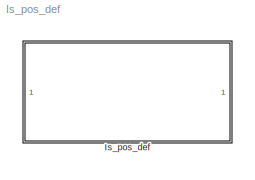
MODEL Is_pos_def
KIND model
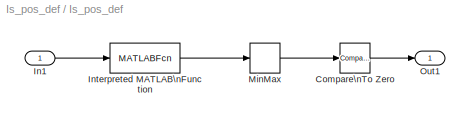
BLOCK [SubSystem] Is_pos_def
  FunctionWithSeparateData = off
  MaskHideContents = off
  MinAlgLoopOccurrences = off
  Opaque = off
  Ports = [1, 1]
  PropExecContextOutsideSubsystem = off
  RTWSystemCode = Auto
  RequestExecContextInheritance = off
  SID = 9
  TreatAsAtomicUnit = on
BLOCK [Reference] Is_pos_def/Compare\nTo Zero  REF=simulink/Logic and Bit\nOperations/Compare\nTo Zero
  OutDataTypeStr = boolean
  Ports = [1, 1]
  SID = 5
  SourceBlock = simulink/Logic and Bit\nOperations/Compare\nTo Zero
  SourceType = Compare To Zero
  ZeroCross = on
  relop = >=
BLOCK [Inport] Is_pos_def/In1
  IconDisplay = Port number
  SID = 10
BLOCK [MATLABFcn] Is_pos_def/Interpreted MATLAB\nFunction
  MATLABFcn = eig
  Ports = [1, 1]
  SID = 6
BLOCK [MinMax] Is_pos_def/MinMax
  InputSameDT = off
  Ports = [1, 1]
  SID = 7
  SaturateOnIntegerOverflow = off
BLOCK [Outport] Is_pos_def/Out1
  IconDisplay = Port number
  SID = 13
LINE Is_pos_def/Compare\nTo Zero:1 -> Is_pos_def/Out1:1
LINE Is_pos_def/In1:1 -> Is_pos_def/Interpreted MATLAB\nFunction:1
LINE Is_pos_def/Interpreted MATLAB\nFunction:1 -> Is_pos_def/MinMax:1
LINE Is_pos_def/MinMax:1 -> Is_pos_def/Compare\nTo Zero:1
